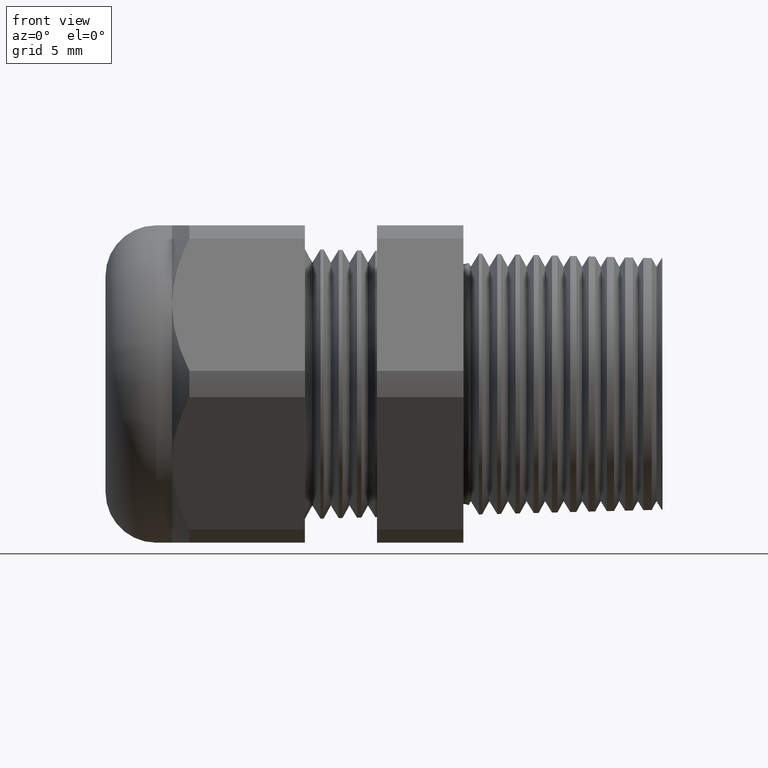
[diagram: clean part render]
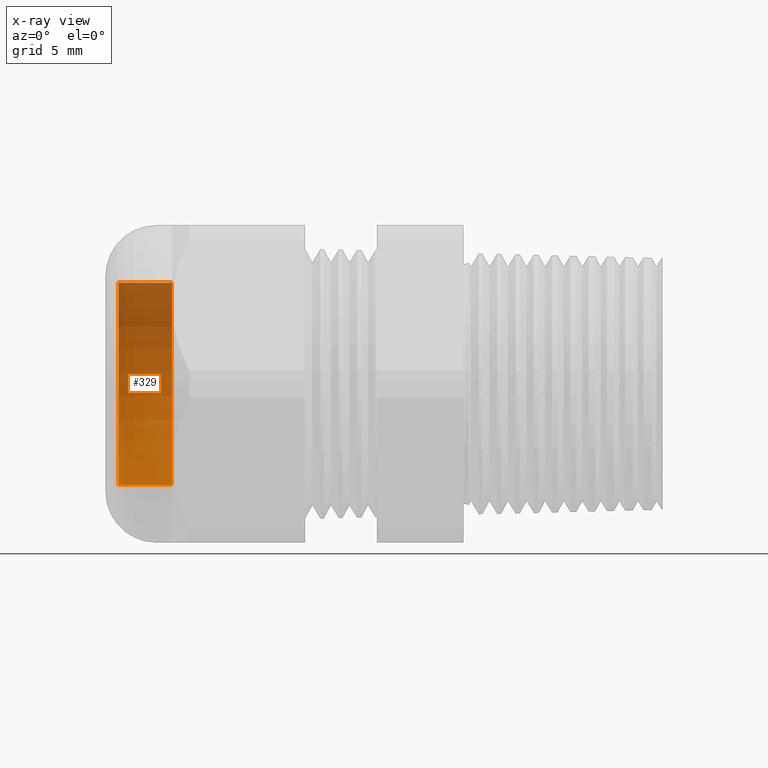
[diagram: x-ray — body ghosted, one internal face saturated and labeled with its STEP entity id]
A machine part, front view, then the same camera in x-ray: the body is ghosted and one INTERNAL B-rep face — a face not visible from any outside direction — is saturated and labeled: STEP entity #329.
In plain terms, the highlighted cylindrical surface (partial cylindrical patch) has radius 7.62 mm, axis along (1, 0, 0).
Its self-contained STEP definition (entity closure, byte-faithful):
#311 = VERTEX_POINT ( 'NONE', #1533 ) ;
#313 = EDGE_CURVE ( 'NONE', #314, #311, #1596, .T. ) ;
#314 = VERTEX_POINT ( 'NONE', #1591 ) ;
#329 = ADVANCED_FACE ( 'NONE', ( #1573 ), #1571, .T. ) ;
#330 = EDGE_LOOP ( 'NONE', ( #331, #332, #335, #350 ) ) ;
#331 = ORIENTED_EDGE ( 'NONE', *, *, #313, .T. ) ;
#332 = ORIENTED_EDGE ( 'NONE', *, *, #333, .T. ) ;
#333 = EDGE_CURVE ( 'NONE', #311, #334, #1567, .T. ) ;
#334 = VERTEX_POINT ( 'NONE', #1563 ) ;
#335 = ORIENTED_EDGE ( 'NONE', *, *, #336, .F. ) ;
#336 = EDGE_CURVE ( 'NONE', #337, #334, #1627, .T. ) ;
#337 = VERTEX_POINT ( 'NONE', #1622 ) ;
#350 = ORIENTED_EDGE ( 'NONE', *, *, #351, .F. ) ;
#351 = EDGE_CURVE ( 'NONE', #314, #337, #1598, .T. ) ;
#1533 = CARTESIAN_POINT ( 'NONE',  ( -1.330999999999999700, 3.673940397442060700E-017, 0.3000000000000001000 ) ) ;
#1563 = CARTESIAN_POINT ( 'NONE',  ( -1.173149606299212600, 3.673940397442059500E-017, 0.3000000000000000400 ) ) ;
#1564 = DIRECTION ( 'NONE',  ( 1.000000000000000000, 0.0000000000000000000, 0.0000000000000000000 ) ) ;
#1565 = VECTOR ( 'NONE', #1564, 39.37007874015748100 ) ;
#1566 = CARTESIAN_POINT ( 'NONE',  ( 0.0000000000000000000, 3.673940397442060700E-017, 0.3000000000000001000 ) ) ;
#1567 = LINE ( 'NONE', #1566, #1565 ) ;
#1568 = DIRECTION ( 'NONE',  ( 0.0000000000000000000, 0.0000000000000000000, -1.000000000000000000 ) ) ;
#1569 = DIRECTION ( 'NONE',  ( 1.000000000000000000, 0.0000000000000000000, 0.0000000000000000000 ) ) ;
#1570 = AXIS2_PLACEMENT_3D ( 'NONE', #1572, #1569, #1568 ) ;
#1571 = CYLINDRICAL_SURFACE ( 'NONE', #1570, 0.3000000000000001000 ) ;
#1572 = CARTESIAN_POINT ( 'NONE',  ( 0.0000000000000000000, 0.0000000000000000000, 0.0000000000000000000 ) ) ;
#1573 = FACE_OUTER_BOUND ( 'NONE', #330, .T. ) ;
#1591 = CARTESIAN_POINT ( 'NONE',  ( -1.330999999999999700, 0.0000000000000000000, -0.3000000000000001000 ) ) ;
#1592 = DIRECTION ( 'NONE',  ( 0.0000000000000000000, 0.0000000000000000000, -1.000000000000000000 ) ) ;
#1593 = DIRECTION ( 'NONE',  ( 1.000000000000000000, 0.0000000000000000000, 0.0000000000000000000 ) ) ;
#1594 = CARTESIAN_POINT ( 'NONE',  ( -1.330999999999999700, 0.0000000000000000000, 0.0000000000000000000 ) ) ;
#1595 = AXIS2_PLACEMENT_3D ( 'NONE', #1594, #1593, #1592 ) ;
#1596 = CIRCLE ( 'NONE', #1595, 0.3000000000000001000 ) ;
#1597 = CARTESIAN_POINT ( 'NONE',  ( 0.0000000000000000000, 0.0000000000000000000, -0.3000000000000001000 ) ) ;
#1598 = LINE ( 'NONE', #1597, #1659 ) ;
#1622 = CARTESIAN_POINT ( 'NONE',  ( -1.173149606299212600, 0.0000000000000000000, -0.3000000000000000400 ) ) ;
#1623 = DIRECTION ( 'NONE',  ( 0.0000000000000000000, 0.0000000000000000000, -1.000000000000000000 ) ) ;
#1624 = DIRECTION ( 'NONE',  ( 1.000000000000000000, 0.0000000000000000000, 0.0000000000000000000 ) ) ;
#1625 = CARTESIAN_POINT ( 'NONE',  ( -1.173149606299212600, 0.0000000000000000000, 0.0000000000000000000 ) ) ;
#1626 = AXIS2_PLACEMENT_3D ( 'NONE', #1625, #1624, #1623 ) ;
#1627 = CIRCLE ( 'NONE', #1626, 0.3000000000000000400 ) ;
#1658 = DIRECTION ( 'NONE',  ( 1.000000000000000000, 0.0000000000000000000, 0.0000000000000000000 ) ) ;
#1659 = VECTOR ( 'NONE', #1658, 39.37007874015748100 ) ;